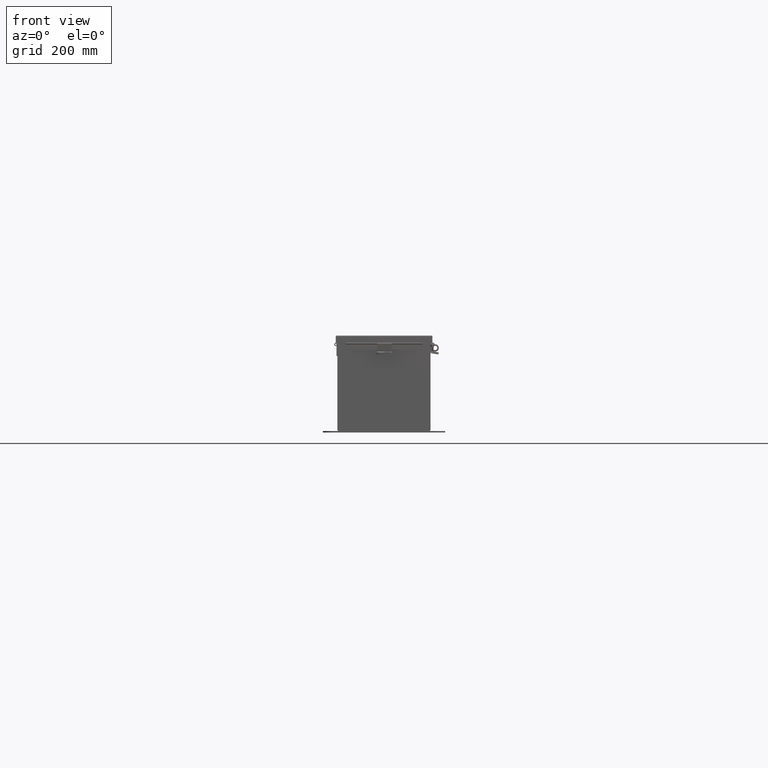
[diagram: clean part render]
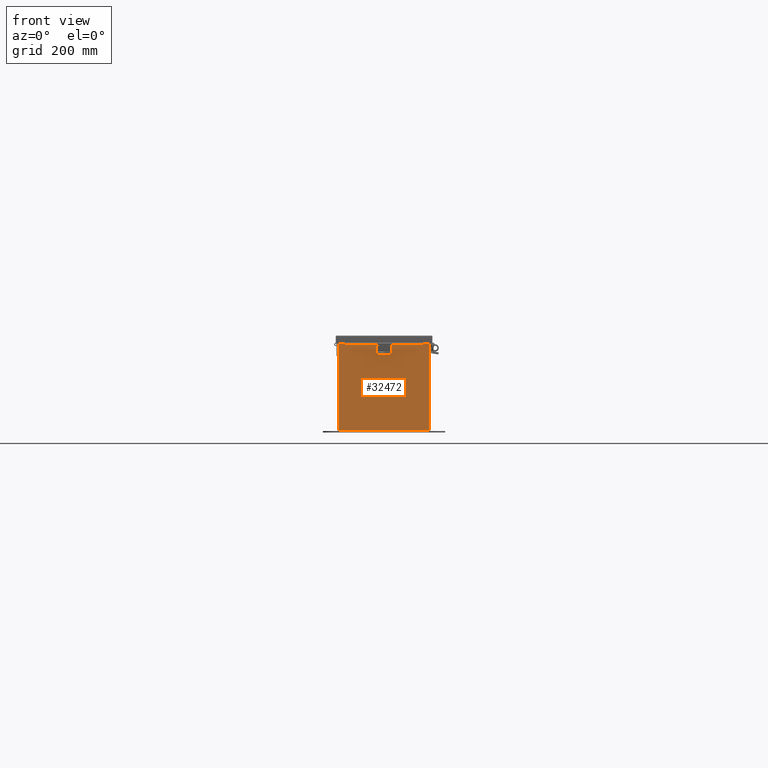
[diagram: same view with one face highlighted and labeled with its STEP entity id]
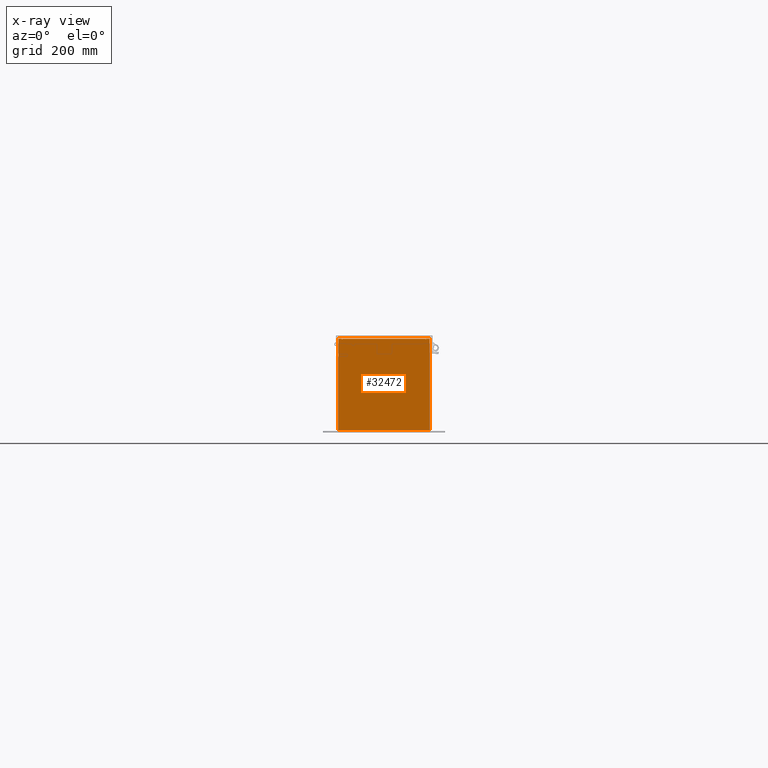
[diagram: x-ray of the same camera — body ghosted, the highlighted face saturated]
A machine part, front view. The second image highlights one B-rep face of the part: STEP entity #32472.
The next image is the same camera in x-ray: the body ghosted, the highlighted face saturated — about 0% of this face is hidden behind the body in this view.
In plain terms, the highlighted planar face has unit normal (-0, 1, -0).
Its self-contained STEP definition (entity closure, byte-faithful):
#904 = ORIENTED_EDGE ( 'NONE', *, *, #28834, .T. ) ;
#1043 = DIRECTION ( 'NONE',  ( 0.0000000000000000000, 0.0000000000000000000, -1.000000000000000000 ) ) ;
#1647 = CARTESIAN_POINT ( 'NONE',  ( 3.582300000000009800, -8.741913579725642300E-014, 3.874950000000000100 ) ) ;
#1763 = LINE ( 'NONE', #32035, #35213 ) ;
#2101 = CARTESIAN_POINT ( 'NONE',  ( 3.925299999999999100, -8.741913579725642300E-014, 3.925299999999999100 ) ) ;
#2791 = EDGE_CURVE ( 'NONE', #11009, #16844, #1763, .T. ) ;
#3270 = CARTESIAN_POINT ( 'NONE',  ( -3.925300000000000500, -8.741913579725642300E-014, 3.925299999999998200 ) ) ;
#3374 = LINE ( 'NONE', #3270, #29024 ) ;
#3816 = CARTESIAN_POINT ( 'NONE',  ( 3.619650000000010200, -8.741913579725642300E-014, 3.874949999999999200 ) ) ;
#5230 = ORIENTED_EDGE ( 'NONE', *, *, #18308, .F. ) ;
#5324 = EDGE_CURVE ( 'NONE', #14999, #30282, #22665, .T. ) ;
#6468 = VECTOR ( 'NONE', #18753, 39.37007874015748100 ) ;
#6780 = DIRECTION ( 'NONE',  ( 1.000000000000000000, 1.230560758958866800E-030, 0.0000000000000000000 ) ) ;
#7115 = DIRECTION ( 'NONE',  ( 1.230560758958866800E-030, 1.000000000000000000, -0.0000000000000000000 ) ) ;
#8161 = ORIENTED_EDGE ( 'NONE', *, *, #35995, .F. ) ;
#8647 = DIRECTION ( 'NONE',  ( 0.0000000000000000000, 0.0000000000000000000, 1.000000000000000000 ) ) ;
#8855 = VERTEX_POINT ( 'NONE', #11739 ) ;
#9064 = CARTESIAN_POINT ( 'NONE',  ( -3.925300000000000500, 0.0000000000000000000, -3.925300000000010700 ) ) ;
#10412 = FACE_OUTER_BOUND ( 'NONE', #39693, .T. ) ;
#11009 = VERTEX_POINT ( 'NONE', #42655 ) ;
#11739 = CARTESIAN_POINT ( 'NONE',  ( 3.582299999999999200, -8.741913579725642300E-014, 3.912299999999999200 ) ) ;
#13951 = VERTEX_POINT ( 'NONE', #3816 ) ;
#13990 = ORIENTED_EDGE ( 'NONE', *, *, #5324, .F. ) ;
#14132 = DIRECTION ( 'NONE',  ( 0.0000000000000000000, 0.0000000000000000000, 1.000000000000000000 ) ) ;
#14255 = LINE ( 'NONE', #30943, #22102 ) ;
#14649 = ORIENTED_EDGE ( 'NONE', *, *, #29221, .F. ) ;
#14752 = EDGE_CURVE ( 'NONE', #32453, #8855, #38434, .T. ) ;
#14927 = VERTEX_POINT ( 'NONE', #42598 ) ;
#14999 = VERTEX_POINT ( 'NONE', #29630 ) ;
#16456 = CARTESIAN_POINT ( 'NONE',  ( 3.600975000000010300, -8.741913579725642300E-014, 3.874949999999999200 ) ) ;
#16844 = VERTEX_POINT ( 'NONE', #27289 ) ;
#17652 = VERTEX_POINT ( 'NONE', #1647 ) ;
#17957 = ORIENTED_EDGE ( 'NONE', *, *, #35997, .T. ) ;
#18308 = EDGE_CURVE ( 'NONE', #13951, #17652, #28668, .T. ) ;
#18426 = CARTESIAN_POINT ( 'NONE',  ( 3.582299999999999200, 0.0000000000000000000, 0.0000000000000000000 ) ) ;
#18457 = CARTESIAN_POINT ( 'NONE',  ( 0.0000000000000000000, 0.0000000000000000000, 0.0000000000000000000 ) ) ;
#18753 = DIRECTION ( 'NONE',  ( 0.0000000000000000000, 0.0000000000000000000, -1.000000000000000000 ) ) ;
#19812 = DIRECTION ( 'NONE',  ( 0.0000000000000000000, 0.0000000000000000000, -1.000000000000000000 ) ) ;
#20527 = AXIS2_PLACEMENT_3D ( 'NONE', #27130, #7115, #30502 ) ;
#21054 = CARTESIAN_POINT ( 'NONE',  ( -3.582300000000000000, 0.0000000000000000000, -1.092739197465705300E-014 ) ) ;
#21792 = DIRECTION ( 'NONE',  ( 0.0000000000000000000, 0.0000000000000000000, 1.000000000000000000 ) ) ;
#21830 = DIRECTION ( 'NONE',  ( 0.0000000000000000000, 0.0000000000000000000, -1.000000000000000000 ) ) ;
#22089 = VECTOR ( 'NONE', #40485, 39.37007874015748100 ) ;
#22102 = VECTOR ( 'NONE', #34278, 39.37007874015748100 ) ;
#22159 = ORIENTED_EDGE ( 'NONE', *, *, #34642, .T. ) ;
#22276 = ORIENTED_EDGE ( 'NONE', *, *, #31128, .F. ) ;
#22665 = CIRCLE ( 'NONE', #20527, 0.01867500000000003900 ) ;
#24248 = LINE ( 'NONE', #2101, #6468 ) ;
#25895 = ORIENTED_EDGE ( 'NONE', *, *, #14752, .T. ) ;
#25937 = AXIS2_PLACEMENT_3D ( 'NONE', #16456, #39816, #19812 ) ;
#26448 = VECTOR ( 'NONE', #32444, 39.37007874015748100 ) ;
#27130 = CARTESIAN_POINT ( 'NONE',  ( -3.600974999999989400, -8.741913579725642300E-014, 3.874949999999997900 ) ) ;
#27289 = CARTESIAN_POINT ( 'NONE',  ( -3.925300000000000500, -8.741913579725642300E-014, 3.925299999999998200 ) ) ;
#28511 = ORIENTED_EDGE ( 'NONE', *, *, #41448, .T. ) ;
#28668 = CIRCLE ( 'NONE', #25937, 0.01867500000000003900 ) ;
#28834 = EDGE_CURVE ( 'NONE', #36894, #14927, #24248, .T. ) ;
#29024 = VECTOR ( 'NONE', #6780, 39.37007874015748100 ) ;
#29221 = EDGE_CURVE ( 'NONE', #32453, #14999, #34150, .T. ) ;
#29630 = CARTESIAN_POINT ( 'NONE',  ( -3.582299999999989400, -8.741913579725642300E-014, 3.874949999999997900 ) ) ;
#29714 = CARTESIAN_POINT ( 'NONE',  ( 3.925299999999999100, -8.741913579725642300E-014, 3.925299999999999100 ) ) ;
#30282 = VERTEX_POINT ( 'NONE', #43166 ) ;
#30502 = DIRECTION ( 'NONE',  ( 0.0000000000000000000, 0.0000000000000000000, -1.000000000000000000 ) ) ;
#30943 = CARTESIAN_POINT ( 'NONE',  ( -3.925300000000000500, -8.741913579725642300E-014, 3.925299999999998200 ) ) ;
#31128 = EDGE_CURVE ( 'NONE', #17652, #8855, #40803, .T. ) ;
#31663 = VERTEX_POINT ( 'NONE', #41291 ) ;
#31862 = AXIS2_PLACEMENT_3D ( 'NONE', #18457, #41829, #21830 ) ;
#32035 = CARTESIAN_POINT ( 'NONE',  ( -3.925300000000000500, -8.741913579725642300E-014, 3.925299999999998200 ) ) ;
#32444 = DIRECTION ( 'NONE',  ( -1.000000000000000000, -1.230560758958866800E-030, 0.0000000000000000000 ) ) ;
#32453 = VERTEX_POINT ( 'NONE', #41665 ) ;
#32472 = ADVANCED_FACE ( 'NONE', ( #10412 ), #34977, .F. ) ;
#33998 = ORIENTED_EDGE ( 'NONE', *, *, #37679, .F. ) ;
#34111 = LINE ( 'NONE', #37140, #22089 ) ;
#34123 = LINE ( 'NONE', #37478, #39854 ) ;
#34150 = LINE ( 'NONE', #21054, #36257 ) ;
#34278 = DIRECTION ( 'NONE',  ( 1.000000000000000000, 1.230560758958866800E-030, 0.0000000000000000000 ) ) ;
#34281 = LINE ( 'NONE', #9064, #26448 ) ;
#34642 = EDGE_CURVE ( 'NONE', #16844, #40129, #3374, .T. ) ;
#34977 = PLANE ( 'NONE',  #31862 ) ;
#35213 = VECTOR ( 'NONE', #8647, 39.37007874015748100 ) ;
#35995 = EDGE_CURVE ( 'NONE', #30282, #40129, #34123, .T. ) ;
#35997 = EDGE_CURVE ( 'NONE', #31663, #36894, #14255, .T. ) ;
#36257 = VECTOR ( 'NONE', #1043, 39.37007874015748100 ) ;
#36506 = ORIENTED_EDGE ( 'NONE', *, *, #2791, .T. ) ;
#36894 = VERTEX_POINT ( 'NONE', #29714 ) ;
#37140 = CARTESIAN_POINT ( 'NONE',  ( 3.619649999999915200, 0.0000000000000000000, -7.867722221753078700E-014 ) ) ;
#37392 = VECTOR ( 'NONE', #41730, 39.37007874015748100 ) ;
#37478 = CARTESIAN_POINT ( 'NONE',  ( -3.619650000000000500, 0.0000000000000000000, 0.0000000000000000000 ) ) ;
#37679 = EDGE_CURVE ( 'NONE', #31663, #13951, #34111, .T. ) ;
#38355 = CARTESIAN_POINT ( 'NONE',  ( -3.582300000000000000, -8.304817900739359900E-014, 3.912299999999999200 ) ) ;
#38434 = LINE ( 'NONE', #38355, #37392 ) ;
#39693 = EDGE_LOOP ( 'NONE', ( #8161, #13990, #14649, #25895, #22276, #5230, #33998, #17957, #904, #28511, #36506, #22159 ) ) ;
#39770 = VECTOR ( 'NONE', #21792, 39.37007874015748100 ) ;
#39816 = DIRECTION ( 'NONE',  ( 1.230560758958866800E-030, 1.000000000000000000, -0.0000000000000000000 ) ) ;
#39854 = VECTOR ( 'NONE', #14132, 39.37007874015748100 ) ;
#40129 = VERTEX_POINT ( 'NONE', #41407 ) ;
#40485 = DIRECTION ( 'NONE',  ( -2.170286390199978800E-014, -1.972152263052529500E-030, -1.000000000000000000 ) ) ;
#40803 = LINE ( 'NONE', #18426, #39770 ) ;
#41291 = CARTESIAN_POINT ( 'NONE',  ( 3.619650000000000500, -8.741913579725642300E-014, 3.925299999999998200 ) ) ;
#41407 = CARTESIAN_POINT ( 'NONE',  ( -3.619650000000000500, -8.741913579725642300E-014, 3.925299999999999100 ) ) ;
#41448 = EDGE_CURVE ( 'NONE', #14927, #11009, #34281, .T. ) ;
#41665 = CARTESIAN_POINT ( 'NONE',  ( -3.582300000000000000, -8.304817900739359900E-014, 3.912299999999999200 ) ) ;
#41730 = DIRECTION ( 'NONE',  ( 1.000000000000000000, 1.230560758958866800E-030, -0.0000000000000000000 ) ) ;
#41829 = DIRECTION ( 'NONE',  ( -1.230560758958866800E-030, -1.000000000000000000, -0.0000000000000000000 ) ) ;
#42598 = CARTESIAN_POINT ( 'NONE',  ( 3.925299999999999100, 0.0000000000000000000, -3.925299999999999600 ) ) ;
#42655 = CARTESIAN_POINT ( 'NONE',  ( -3.925300000000000500, 0.0000000000000000000, -3.925300000000010700 ) ) ;
#43166 = CARTESIAN_POINT ( 'NONE',  ( -3.619649999999989400, -8.741913579725642300E-014, 3.874949999999997900 ) ) ;